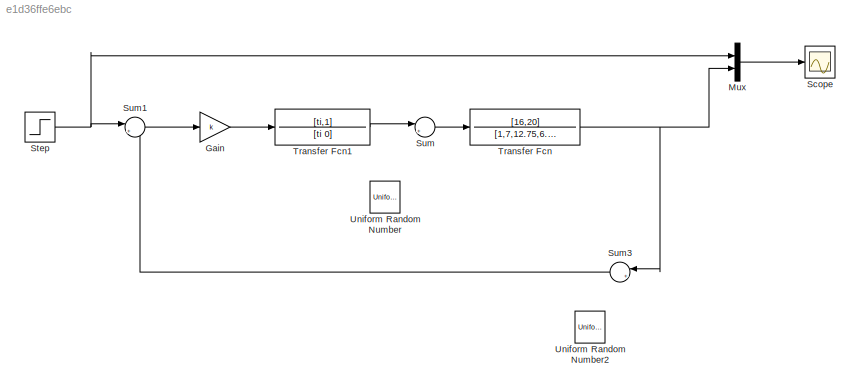
MODEL slx_e1d36ffe6ebc
KIND model
BLOCK [Gain] Gain
  Gain = k
  OutDataTypeStr = Inherit: Inherit via internal rule
  ParamDataTypeStr = Inherit: Inherit via internal rule
  SaturateOnIntegerOverflow = off
BLOCK [Mux] Mux
  DisplayOption = bar
  Inputs = 2
  Ports = [2, 1]
BLOCK [Scope] Scope
  DataFormat = StructureWithTime
  Floating = off
  NumInputPorts = 1
  Ports = [1]
  SampleTime = 0
  ShowLegends = off
BLOCK [Step] Step
  SampleTime = 0
BLOCK [Sum] Sum
  IconShape = round
  InputSameDT = off
  Inputs = |++
  OutDataTypeStr = Inherit: Inherit via internal rule
  Ports = [2, 1]
  SaturateOnIntegerOverflow = off
BLOCK [Sum] Sum1
  IconShape = round
  InputSameDT = off
  Inputs = |+-
  OutDataTypeStr = Inherit: Inherit via internal rule
  Ports = [2, 1]
  SaturateOnIntegerOverflow = off
BLOCK [Sum] Sum3
  IconShape = round
  InputSameDT = off
  Inputs = |++
  OutDataTypeStr = Inherit: Inherit via internal rule
  Ports = [2, 1]
  SaturateOnIntegerOverflow = off
BLOCK [TransferFcn] Transfer Fcn
  Denominator = [1,7,12.75,6.75]
  Numerator = [16,20]
BLOCK [TransferFcn] Transfer Fcn1
  Denominator = [ti 0]
  Numerator = [ti,1]
BLOCK [UniformRandomNumber] Uniform Random Number
  SampleTime = 0.1
BLOCK [UniformRandomNumber] Uniform Random Number2
  SampleTime = 0.1
LINE Gain:1 -> Transfer Fcn1:1
LINE Mux:1 -> Scope:1
NET Step:1 -> Mux:1, Sum1:1
LINE Sum1:1 -> Gain:1
LINE Sum3:1 -> Sum1:2
LINE Sum:1 -> Transfer Fcn:1
LINE Transfer Fcn1:1 -> Sum:1
NET Transfer Fcn:1 -> Mux:2, Sum3:1
note: NET lines group one-source signal fan-out (src -> all destinations, sorted); 1:1 wires keep LINE
